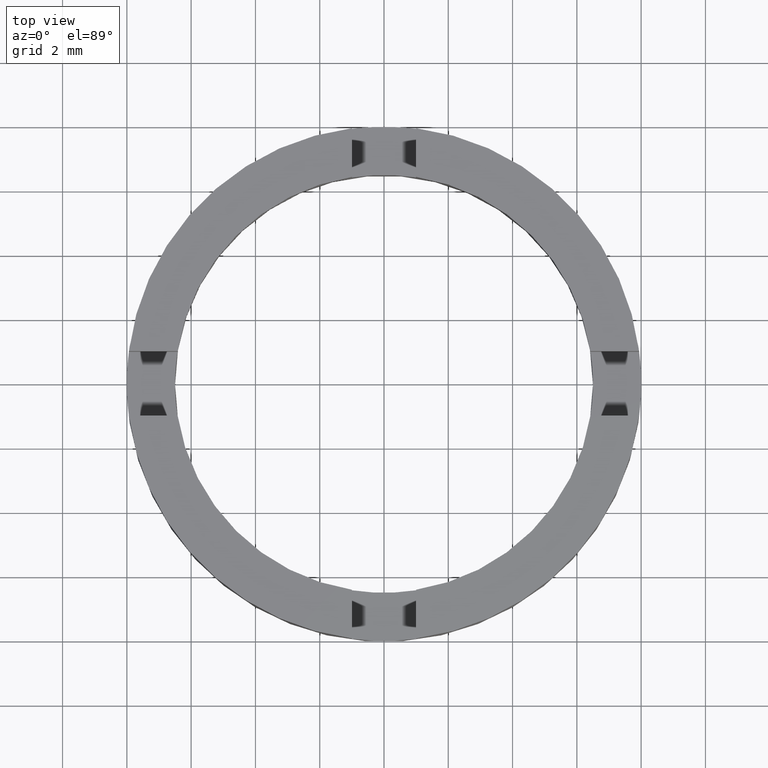
[diagram: clean part render]
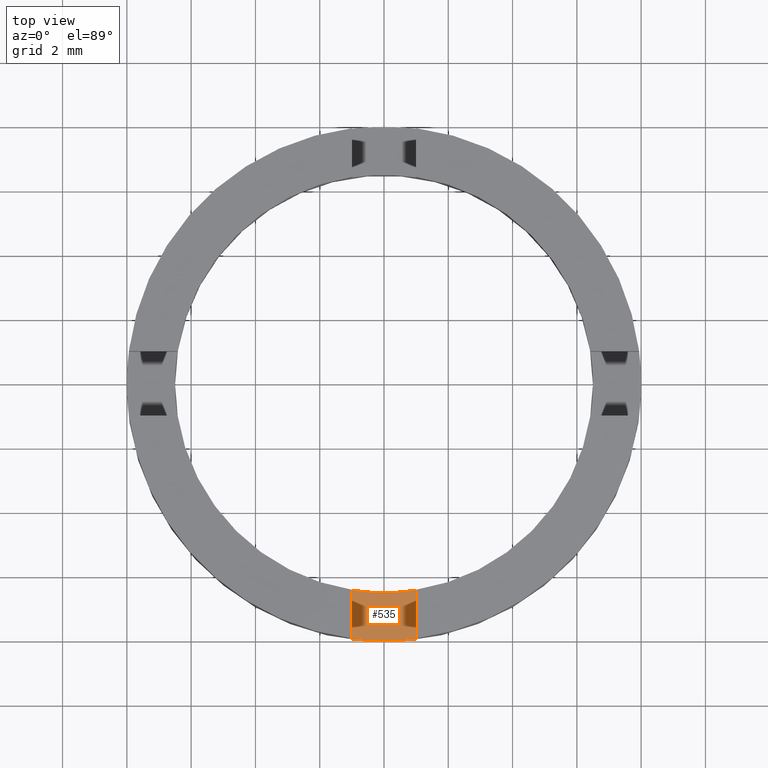
[diagram: same view with one face highlighted and labeled with its STEP entity id]
A machine part, top view. The second image highlights one B-rep face of the part: STEP entity #535.
In plain terms, the highlighted planar face has unit normal (-0, 0, 1).
Its self-contained STEP definition (entity closure, byte-faithful):
#1 = VERTEX_POINT ( 'NONE', #269 ) ;
#4 = PLANE ( 'NONE',  #635 ) ;
#7 = CARTESIAN_POINT ( 'NONE',  ( 0.000000000000000000, 0.000000000000000000, 1.500000000000000000 ) ) ;
#13 = CARTESIAN_POINT ( 'NONE',  ( -0.9999999999999986677, -7.937253933193772149, 1.500000000000000000 ) ) ;
#26 = VERTEX_POINT ( 'NONE', #13 ) ;
#32 = EDGE_LOOP ( 'NONE', ( #249, #366, #95, #194 ) ) ;
#95 = ORIENTED_EDGE ( 'NONE', *, *, #134, .T. ) ;
#104 = DIRECTION ( 'NONE',  ( 1.000000000000000000, 0.000000000000000000, 0.000000000000000000 ) ) ;
#107 = VERTEX_POINT ( 'NONE', #476 ) ;
#114 = VERTEX_POINT ( 'NONE', #584 ) ;
#124 = LINE ( 'NONE', #638, #129 ) ;
#129 = VECTOR ( 'NONE', #465, 1000.000000000000000 ) ;
#134 = EDGE_CURVE ( 'NONE', #114, #1, #124, .T. ) ;
#143 = CIRCLE ( 'NONE', #497, 8.000000000000000000 ) ;
#152 = FACE_OUTER_BOUND ( 'NONE', #32, .T. ) ;
#161 = EDGE_CURVE ( 'NONE', #26, #114, #143, .T. ) ;
#167 = VECTOR ( 'NONE', #245, 1000.000000000000000 ) ;
#176 = DIRECTION ( 'NONE',  ( -0.000000000000000000, 0.000000000000000000, 1.000000000000000000 ) ) ;
#194 = ORIENTED_EDGE ( 'NONE', *, *, #527, .T. ) ;
#218 = CARTESIAN_POINT ( 'NONE',  ( 0.000000000000000000, 0.000000000000000000, 1.500000000000000000 ) ) ;
#245 = DIRECTION ( 'NONE',  ( 0.000000000000000000, 1.000000000000000000, -0.000000000000000000 ) ) ;
#249 = ORIENTED_EDGE ( 'NONE', *, *, #543, .F. ) ;
#265 = AXIS2_PLACEMENT_3D ( 'NONE', #7, #653, #104 ) ;
#269 = CARTESIAN_POINT ( 'NONE',  ( 1.000000000000001332, -6.422616289332564676, 1.500000000000000000 ) ) ;
#366 = ORIENTED_EDGE ( 'NONE', *, *, #161, .T. ) ;
#413 = CARTESIAN_POINT ( 'NONE',  ( 0.000000000000000000, 0.000000000000000000, 1.500000000000000000 ) ) ;
#429 = LINE ( 'NONE', #549, #167 ) ;
#465 = DIRECTION ( 'NONE',  ( -1.355252715606880543E-17, 1.000000000000000000, 0.000000000000000000 ) ) ;
#476 = CARTESIAN_POINT ( 'NONE',  ( -0.9999999999999986677, -6.422616289332565565, 1.500000000000000000 ) ) ;
#497 = AXIS2_PLACEMENT_3D ( 'NONE', #218, #777, #529 ) ;
#527 = EDGE_CURVE ( 'NONE', #1, #107, #679, .T. ) ;
#529 = DIRECTION ( 'NONE',  ( 1.000000000000000000, 0.000000000000000000, 0.000000000000000000 ) ) ;
#535 = ADVANCED_FACE ( 'NONE', ( #152 ), #4, .T. ) ;
#543 = EDGE_CURVE ( 'NONE', #26, #107, #429, .T. ) ;
#549 = CARTESIAN_POINT ( 'NONE',  ( -0.9999999999999986677, 0.000000000000000000, 1.500000000000000000 ) ) ;
#584 = CARTESIAN_POINT ( 'NONE',  ( 1.000000000000001332, -7.937253933193772149, 1.500000000000000000 ) ) ;
#596 = DIRECTION ( 'NONE',  ( 1.000000000000000000, 0.000000000000000000, 0.000000000000000000 ) ) ;
#635 = AXIS2_PLACEMENT_3D ( 'NONE', #413, #176, #596 ) ;
#638 = CARTESIAN_POINT ( 'NONE',  ( 1.000000000000001332, 1.355252715606882391E-17, 1.500000000000000000 ) ) ;
#653 = DIRECTION ( 'NONE',  ( 0.000000000000000000, -0.000000000000000000, -1.000000000000000000 ) ) ;
#679 = CIRCLE ( 'NONE', #265, 6.500000000000000888 ) ;
#777 = DIRECTION ( 'NONE',  ( -0.000000000000000000, 0.000000000000000000, 1.000000000000000000 ) ) ;